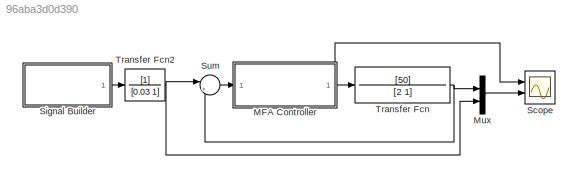
MODEL slx_96aba3d0d390
KIND model
CONFIG AbsTol = auto
CONFIG EnableMultiTasking = off
CONFIG FixedStep = 0.01
CONFIG MaxStep = auto
CONFIG MinStep = auto
CONFIG RelTol = 1e-3
CONFIG SampleTimeConstraint = Unconstrained
CONFIG Solver = ode5
CONFIG SolverName = ode5
CONFIG StartTime = 0.0
CONFIG StopTime = 100
WORKSPACE source: external: MAT-File  (data not in archive)
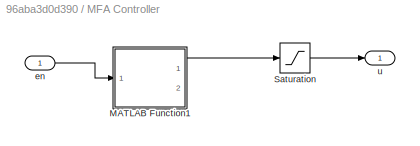
BLOCK [SubSystem] MFA Controller
  Ports = [1, 1]
  RequestExecContextInheritance = off
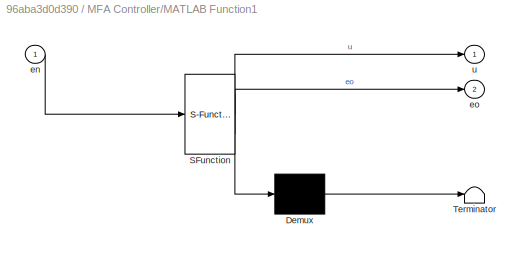
BLOCK [SubSystem] MFA Controller/MATLAB Function1
  ErrorFcn = Stateflow.Translate.translate
  PermitHierarchicalResolution = ExplicitOnly
  Ports = [1, 2]
  RequestExecContextInheritance = off
  SFBlockType = MATLAB Function
  TreatAsAtomicUnit = on
BLOCK [Demux] MFA Controller/MATLAB Function1/ Demux 
  Outputs = 1
  Ports = [1, 1]
BLOCK [S-Function] MFA Controller/MATLAB Function1/ SFunction 
  EnableBusSupport = on
  FunctionName = sf_sfun
  PortCounts = [1 3]
  Ports = [1, 3]
  SFcnIsStateOwnerBlock = off
  SFunctionDeploymentMode = off
  Tag = Stateflow S-Function MFA_sim 1
BLOCK [Terminator] MFA Controller/MATLAB Function1/ Terminator 
BLOCK [Inport] MFA Controller/MATLAB Function1/en
  IconDisplay = Port number
BLOCK [Outport] MFA Controller/MATLAB Function1/eo
  IconDisplay = Port number
  Port = 2
BLOCK [Outport] MFA Controller/MATLAB Function1/u
  IconDisplay = Port number
BLOCK [Saturate] MFA Controller/Saturation
  InputPortMap = u0
  LowerLimit = -1
  Ports = [1, 1]
  UpperLimit = 1
BLOCK [Inport] MFA Controller/en
  IconDisplay = Port number
BLOCK [Outport] MFA Controller/u
  IconDisplay = Port number
BLOCK [Mux] Mux
  DisplayOption = bar
  Inputs = 2
  Ports = [2, 1]
BLOCK [Scope] Scope
  Floating = off
  NumInputPorts = 2
  Ports = [2]
  ScopeSpecificationString = Simulink.scopes.TimeScopeBlockCfg('CurrentConfiguration', extmgr.ConfigurationSet(extmgr.Configuration('Core','General UI',true),extmgr.Configuration('Core','Source UI',true),extmgr.Configuration('Sources','WiredSimulink',true),extmgr.Configuration('Visuals','Time Domain',true,'SerializedDisplays',{struct('MinYLimReal','-1.25','MaxYLimReal','1.25','YLabelReal','','MinYLimMag','0.00000','MaxYLimMag...<+2066ch>
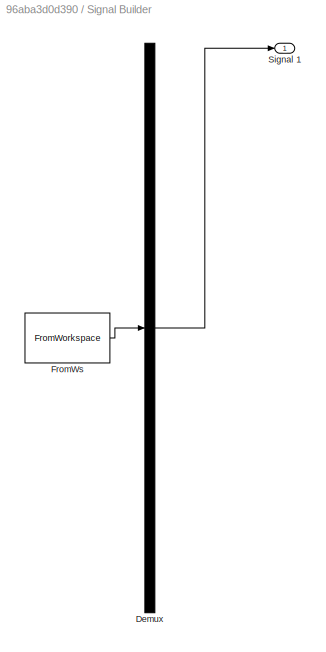
BLOCK [SubSystem] Signal Builder
  ClipboardFcn = sigbuilder_block('clipboard');
  CloseFcn = sigbuilder_block('close');
  ContinueFcn = sigbuilder_block('continue');
  CopyFcn = sigbuilder_block('copy');
  DeleteFcn = sigbuilder_block('delete');
  LoadFcn = sigbuilder_block('load');
  MaskHideContents = on
  ModelCloseFcn = sigbuilder_block('modelClose');
  NameChangeFcn = sigbuilder_block('namechange');
  OpenFcn = sigbuilder_block('open',[437.6 199.2 550.4 400 ]);
  PauseFcn = sigbuilder_block('pause');
  Ports = [0, 1]
  PreSaveFcn = sigbuilder_block('preSave');
  RequestExecContextInheritance = off
  StartFcn = sigbuilder_block('start');
  StopFcn = sigbuilder_block('stop');
  Tag = STV Subsys
BLOCK [Demux] Signal Builder/Demux
  Outputs = 1
  Ports = [1, 1]
  Tag = STV Demux
BLOCK [FromWorkspace] Signal Builder/FromWs
  SampleTime = 0
  Tag = STV FromWs
  VariableName = tuvar
  ZeroCross = on
BLOCK [Outport] Signal Builder/Signal 1
  IconDisplay = Port number
  Tag = STV Outport
BLOCK [Sum] Sum
  IconShape = round
  InputSameDT = off
  Inputs = |+-
  OutDataTypeStr = Inherit: Inherit via internal rule
  Ports = [2, 1]
  SaturateOnIntegerOverflow = off
BLOCK [TransferFcn] Transfer Fcn
  Denominator = [2 1]
  Numerator = [50]
BLOCK [TransferFcn] Transfer Fcn2
  Denominator = [0.03 1]
LINE MFA Controller/MATLAB Function1:1 -> MFA Controller/Saturation:1
LINE MFA Controller/Saturation:1 -> MFA Controller/u:1
LINE MFA Controller/en:1 -> MFA Controller/MATLAB Function1:1
NET MFA Controller:1 -> Scope:1, Transfer Fcn:1
LINE Mux:1 -> Scope:2
LINE Signal Builder:1 -> Transfer Fcn2:1
LINE Sum:1 -> MFA Controller:1
NET Transfer Fcn2:1 -> Mux:2, Sum:1
NET Transfer Fcn:1 -> Mux:1, Sum:2
note: NET lines group one-source signal fan-out (src -> all destinations, sorted); 1:1 wires keep LINE
CHART MFA Controller/MATLAB Function1 states=1 transitions=1
  STATE_LABEL 'eML_blk_kernel()'
  STATE_LABEL 'SCRIPT:\nfunction [u,eo]= fcn(en)\n    global E; global e; global w; global h; global p; global q; global vt;\n    N = 8; %N cannot be larger than 20\n    Kc = 0.012; eta = 0.2;\n    Es = en^2/2;\n    if Es > 0\n        %% Update error\n%         if (en < 0) \n%             en = -en;\n%         end\n        e = en;\n        E(1:N) = [tanh(e/10);E(1:N-1)];\n\n        %% Cal pj and qj\n        for j=1:N\n          ...<+567ch>'
